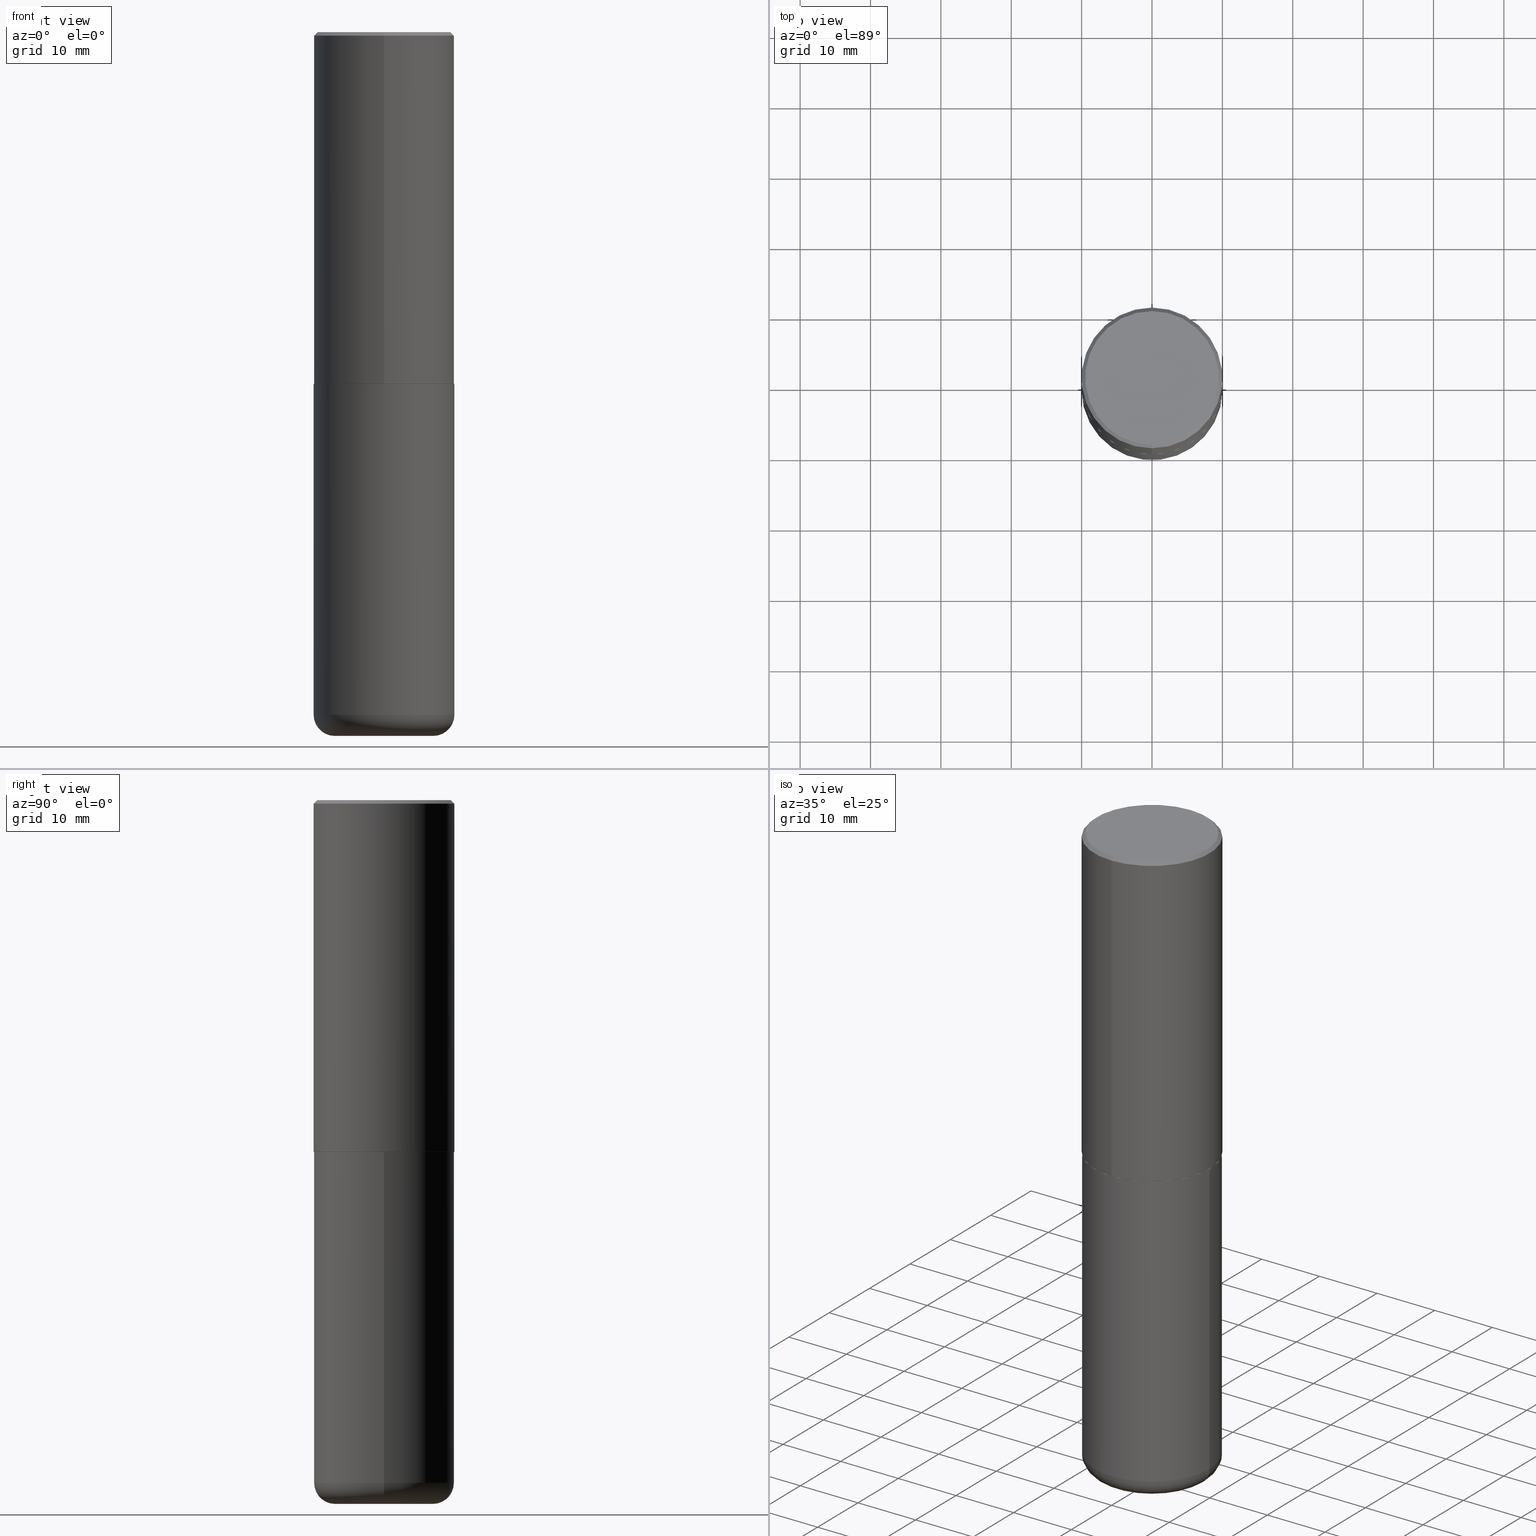
[diagram: canonical four-view strip — front | top / right | iso, engineering-drawing reading convention]
A machine part, canonical four-view strip (front | top / right | iso — engineering-drawing reading convention). The complete STEP part file that produces these views, byte-faithful:
ISO-10303-21;
HEADER;
FILE_DESCRIPTION (( 'STEP AP203' ),
    '1' );
FILE_NAME ('74810.STEP',
    '2024-05-02T19:20:18',
    ( '' ),
    ( '' ),
    'SwSTEP 2.0',
    'SolidWorks 2023',
    '' );
FILE_SCHEMA (( 'CONFIG_CONTROL_DESIGN' ));
ENDSEC;

DATA;
#1 = ORIENTED_EDGE ( 'NONE', *, *, #275, .F. ) ;
#2 = EDGE_CURVE ( 'NONE', #93, #264, #250, .T. ) ;
#3 = AXIS2_PLACEMENT_3D ( 'NONE', #375, #176, #403 ) ;
#4 = VERTEX_POINT ( 'NONE', #173 ) ;
#5 = CC_DESIGN_DATE_AND_TIME_ASSIGNMENT ( #221, #317, ( #382 ) ) ;
#6 = AXIS2_PLACEMENT_3D ( 'NONE', #381, #329, #359 ) ;
#7 = CARTESIAN_POINT ( 'NONE',  ( 9.627810689950883669E-29, -1.374596203102546341E-14, -3.937000000000000277 ) ) ;
#8 = ADVANCED_FACE ( 'NONE', ( #106 ), #148, .T. ) ;
#9 = AXIS2_PLACEMENT_3D ( 'NONE', #376, #347, #253 ) ;
#10 = EDGE_CURVE ( 'NONE', #363, #338, #154, .T. ) ;
#11 = DIRECTION ( 'NONE',  ( 1.000000000000000000, -6.982962677686265922E-15, 0.000000000000000000 ) ) ;
#12 = APPROVAL_STATUS ( 'not_yet_approved' ) ;
#13 = PERSON_AND_ORGANIZATION ( #124, #366 ) ;
#14 = APPROVAL_PERSON_ORGANIZATION ( #183, #213, #402 ) ;
#15 = AXIS2_PLACEMENT_3D ( 'NONE', #7, #282, #11 ) ;
#16 = EDGE_CURVE ( 'NONE', #94, #327, #81, .T. ) ;
#17 = CARTESIAN_POINT ( 'NONE',  ( 4.818695749097161561E-29, -6.866120884157558352E-15, -1.968500000000000139 ) ) ;
#18 = APPROVAL_PERSON_ORGANIZATION ( #43, #259, #167 ) ;
#19 = CARTESIAN_POINT ( 'NONE',  ( 2.609533152651356620E-15, 0.3736999999999999211, -1.190999831739488445E-15 ) ) ;
#20 = AXIS2_PLACEMENT_3D ( 'NONE', #407, #57, #235 ) ;
#21 = AXIS2_PLACEMENT_3D ( 'NONE', #326, #302, #362 ) ;
#22 = ORIENTED_EDGE ( 'NONE', *, *, #77, .F. ) ;
#23 = DIRECTION ( 'NONE',  ( -6.982962677686265922E-15, -1.000000000000000000, 3.469453890861393601E-15 ) ) ;
#24 = ORIENTED_EDGE ( 'NONE', *, *, #263, .T. ) ;
#25 = CARTESIAN_POINT ( 'NONE',  ( 4.895804672692082949E-31, -6.975992770289649092E-17, -0.02000000000000008715 ) ) ;
#26 = FACE_OUTER_BOUND ( 'NONE', #165, .T. ) ;
#27 = AXIS2_PLACEMENT_3D ( 'NONE', #350, #82, #268 ) ;
#28 = LINE ( 'NONE', #160, #59 ) ;
#29 = ORIENTED_EDGE ( 'NONE', *, *, #275, .T. ) ;
#30 = CARTESIAN_POINT ( 'NONE',  ( 9.339000823940418668E-29, -1.333361808490808928E-14, -3.818900000000000183 ) ) ;
#31 = CARTESIAN_POINT ( 'NONE',  ( -0.3937000000000001054, -1.053621133422057529E-14, -3.818900000000000183 ) ) ;
#32 = ORIENTED_EDGE ( 'NONE', *, *, #10, .T. ) ;
#33 = ADVANCED_FACE ( 'NONE', ( #51 ), #158, .F. ) ;
#34 = ADVANCED_FACE ( 'NONE', ( #378 ), #169, .T. ) ;
#35 = VERTEX_POINT ( 'NONE', #54 ) ;
#36 = AXIS2_PLACEMENT_3D ( 'NONE', #228, #220, #23 ) ;
#37 = PRODUCT ( '74810', '74810', '', ( #260 ) ) ;
#38 = DIRECTION ( 'NONE',  ( -2.447902336346030930E-29, 3.487996385144809755E-15, 1.000000000000000000 ) ) ;
#39 = DIRECTION ( 'NONE',  ( 2.447902336346030930E-29, -3.487996385144809755E-15, -1.000000000000000000 ) ) ;
#40 = CARTESIAN_POINT ( 'NONE',  ( -2.749192406205084400E-15, -0.3937000000000002164, 1.373224176831512262E-15 ) ) ;
#41 = DIRECTION ( 'NONE',  ( -6.982962677686265922E-15, -1.000000000000000000, 3.487996385144809360E-15 ) ) ;
#42 = CC_DESIGN_PERSON_AND_ORGANIZATION_ASSIGNMENT ( #63, #245, ( #80 ) ) ;
#43 = PERSON_AND_ORGANIZATION ( #124, #366 ) ;
#44 = DIRECTION ( 'NONE',  ( -2.447902336346030930E-29, 3.487996385144809360E-15, 1.000000000000000000 ) ) ;
#45 = CALENDAR_DATE ( 2024, 2, 5 ) ;
#46 = CARTESIAN_POINT ( 'NONE',  ( -2.749192406205036674E-15, -0.3937000000000070998, -1.967499999999998694 ) ) ;
#47 = CARTESIAN_POINT ( 'NONE',  ( 4.813905344975441835E-29, -6.872981015512731707E-15, -1.968500000000000139 ) ) ;
#48 = DIRECTION ( 'NONE',  ( 1.000000000000000000, -6.982962677686266711E-15, 4.876176775795935793E-29 ) ) ;
#49 = COORDINATED_UNIVERSAL_TIME_OFFSET ( 5, 0, .BEHIND. ) ;
#50 = CARTESIAN_POINT ( 'NONE',  ( 0.000000000000000000, 0.000000000000000000, 0.000000000000000000 ) ) ;
#51 = FACE_OUTER_BOUND ( 'NONE', #303, .T. ) ;
#52 = EDGE_CURVE ( 'NONE', #4, #171, #258, .T. ) ;
#53 = ORIENTED_EDGE ( 'NONE', *, *, #343, .T. ) ;
#54 = CARTESIAN_POINT ( 'NONE',  ( -2.742209443527348687E-15, -0.3927000000000069324, -1.968499999999998584 ) ) ;
#55 = ADVANCED_FACE ( 'NONE', ( #162 ), #134, .T. ) ;
#56 = ORIENTED_EDGE ( 'NONE', *, *, #358, .T. ) ;
#57 = DIRECTION ( 'NONE',  ( -2.447902336346030930E-29, 3.487996385144809755E-15, 1.000000000000000000 ) ) ;
#58 = DIRECTION ( 'NONE',  ( -2.445468806185136597E-29, 3.491481338843145583E-15, 1.000000000000000000 ) ) ;
#59 = VECTOR ( 'NONE', #416, 39.37007874015748143 ) ;
#60 = VERTEX_POINT ( 'NONE', #380 ) ;
#61 = LINE ( 'NONE', #355, #95 ) ;
#62 = CARTESIAN_POINT ( 'NONE',  ( 0.3937000000000001054, -2.749192406205084005E-15, 1.919750796630860452E-29 ) ) ;
#63 = PERSON_AND_ORGANIZATION ( #124, #366 ) ;
#64 = ORIENTED_EDGE ( 'NONE', *, *, #263, .F. ) ;
#65 = AXIS2_PLACEMENT_3D ( 'NONE', #66, #199, #92 ) ;
#66 = CARTESIAN_POINT ( 'NONE',  ( 4.813905344975441835E-29, -6.872981015512731707E-15, -1.968500000000000139 ) ) ;
#67 = UNCERTAINTY_MEASURE_WITH_UNIT (LENGTH_MEASURE( 1.000000000000000082E-05 ), #227, 'distance_accuracy_value', 'NONE');
#68 = EDGE_LOOP ( 'NONE', ( #123, #53, #284, #127 ) ) ;
#69 = ORIENTED_EDGE ( 'NONE', *, *, #71, .F. ) ;
#70 = AXIS2_PLACEMENT_3D ( 'NONE', #191, #328, #294 ) ;
#71 = EDGE_CURVE ( 'NONE', #351, #330, #103, .T. ) ;
#72 = DIRECTION ( 'NONE',  ( -6.982962677686265922E-15, -1.000000000000000000, 3.487996385144809360E-15 ) ) ;
#73 = CARTESIAN_POINT ( 'NONE',  ( 4.818695749097161561E-29, -6.866120884157558352E-15, -1.968500000000000139 ) ) ;
#74 = DIRECTION ( 'NONE',  ( 4.937700262164533054E-15, 0.7071067811865430208, -0.7071067811865520136 ) ) ;
#75 = DATE_TIME_ROLE ( 'creation_date' ) ;
#76 = CONICAL_SURFACE ( 'NONE', #353, 0.3926999999999999935, 0.7853981633975507526 ) ;
#77 = EDGE_CURVE ( 'NONE', #417, #4, #356, .T. ) ;
#78 = PERSON_AND_ORGANIZATION_ROLE ( 'design_supplier' ) ;
#79 = DIRECTION ( 'NONE',  ( -2.445468806185136597E-29, 3.491481338843145583E-15, 1.000000000000000000 ) ) ;
#80 = PRODUCT_DEFINITION ( 'UNKNOWN', '', #249, #147 ) ;
#81 = CIRCLE ( 'NONE', #36, 0.3937000000000002720 ) ;
#82 = DIRECTION ( 'NONE',  ( -2.445468806185136597E-29, 3.491481338843145583E-15, 1.000000000000000000 ) ) ;
#83 = EDGE_CURVE ( 'NONE', #417, #111, #331, .T. ) ;
#84 = CARTESIAN_POINT ( 'NONE',  ( 4.818695749097161561E-29, -6.866120884157558352E-15, -1.968500000000000139 ) ) ;
#85 = ADVANCED_FACE ( 'NONE', ( #118 ), #76, .T. ) ;
#86 = LENGTH_MEASURE_WITH_UNIT ( LENGTH_MEASURE( 0.02539999999999999897 ), #175 );
#87 = DIRECTION ( 'NONE',  ( -2.447902336346030930E-29, 3.487996385144809755E-15, 1.000000000000000000 ) ) ;
#88 = DIRECTION ( 'NONE',  ( -2.447902336346030930E-29, 3.487996385144809755E-15, 1.000000000000000000 ) ) ;
#89 = CARTESIAN_POINT ( 'NONE',  ( 9.339000823940418668E-29, -1.333361808490808928E-14, -3.818900000000000183 ) ) ;
#90 = DIRECTION ( 'NONE',  ( 7.105427357601001859E-15, 1.000000000000000000, -3.491481338843145583E-15 ) ) ;
#91 = ORIENTED_EDGE ( 'NONE', *, *, #10, .F. ) ;
#92 = DIRECTION ( 'NONE',  ( 1.000000000000000000, -6.982962677686265133E-15, 0.000000000000000000 ) ) ;
#93 = VERTEX_POINT ( 'NONE', #212 ) ;
#94 = VERTEX_POINT ( 'NONE', #344 ) ;
#95 = VECTOR ( 'NONE', #74, 39.37007874015748143 ) ;
#96 = FACE_OUTER_BOUND ( 'NONE', #312, .T. ) ;
#97 = ORIENTED_EDGE ( 'NONE', *, *, #52, .T. ) ;
#98 = VECTOR ( 'NONE', #339, 39.37007874015748143 ) ;
#99 = DIRECTION ( 'NONE',  ( -2.447902336346030930E-29, 3.487996385144809755E-15, 1.000000000000000000 ) ) ;
#100 = CALENDAR_DATE ( 2024, 2, 5 ) ;
#101 = EDGE_CURVE ( 'NONE', #363, #111, #398, .T. ) ;
#102 = LOCAL_TIME ( 15, 20, 18.00000000000000000, #49 ) ;
#103 = CIRCLE ( 'NONE', #309, 0.3937000000000001054 ) ;
#104 = DIRECTION ( 'NONE',  ( -1.000000000000000000, 6.982962677686265922E-15, -4.876176775795935793E-29 ) ) ;
#105 = CARTESIAN_POINT ( 'NONE',  ( 2.797406750687515575E-15, 0.3937000000000002164, -1.373224176831512262E-15 ) ) ;
#106 = FACE_OUTER_BOUND ( 'NONE', #114, .T. ) ;
#107 = CALENDAR_DATE ( 2024, 2, 5 ) ;
#108 = ADVANCED_FACE ( 'NONE', ( #26 ), #239, .T. ) ;
#109 = DIRECTION ( 'NONE',  ( 0.000000000000000000, 0.000000000000000000, 1.000000000000000000 ) ) ;
#110 = CIRCLE ( 'NONE', #325, 0.3937000000000001054 ) ;
#111 = VERTEX_POINT ( 'NONE', #31 ) ;
#112 = CARTESIAN_POINT ( 'NONE',  ( 0.3937000000000001054, -1.608281049111317408E-14, -3.818900000000000183 ) ) ;
#113 = DIRECTION ( 'NONE',  ( 6.982962677686265133E-15, 1.000000000000000000, -3.491137977679279029E-15 ) ) ;
#114 = EDGE_LOOP ( 'NONE', ( #333, #270, #274, #22 ) ) ;
#115 = CARTESIAN_POINT ( 'NONE',  ( 4.895804672692082949E-31, -6.975992770289649092E-17, -0.02000000000000008715 ) ) ;
#116 = EDGE_CURVE ( 'NONE', #171, #4, #367, .T. ) ;
#117 = CC_DESIGN_SECURITY_CLASSIFICATION ( #382, ( #249 ) ) ;
#118 = FACE_OUTER_BOUND ( 'NONE', #324, .T. ) ;
#119 = AXIS2_PLACEMENT_3D ( 'NONE', #299, #305, #192 ) ;
#120 = CARTESIAN_POINT ( 'NONE',  ( -2.700978061722651647E-15, -0.3937000000000001609, -0.01999999999999870978 ) ) ;
#121 = DIRECTION ( 'NONE',  ( -2.445468806185136597E-29, 3.491481338843145583E-15, 1.000000000000000000 ) ) ;
#122 = EDGE_LOOP ( 'NONE', ( #311, #390, #418, #271 ) ) ;
#123 = ORIENTED_EDGE ( 'NONE', *, *, #296, .T. ) ;
#124 = PERSON ( 'UNSPECIFIED', 'UNSPECIFIED', 'UNSPECIFIED', ('UNSPECIFIED'), ('UNSPECIFIED'), ('UNSPECIFIED') ) ;
#125 = EDGE_CURVE ( 'NONE', #264, #93, #230, .T. ) ;
#126 = CC_DESIGN_APPROVAL ( #259, ( #80 ) ) ;
#127 = ORIENTED_EDGE ( 'NONE', *, *, #209, .F. ) ;
#128 = VECTOR ( 'NONE', #200, 39.37007874015748143 ) ;
#129 = COORDINATED_UNIVERSAL_TIME_OFFSET ( 5, 0, .BEHIND. ) ;
#130 = CIRCLE ( 'NONE', #9, 0.3926999999999999935 ) ;
#131 = EDGE_LOOP ( 'NONE', ( #336, #91 ) ) ;
#132 = PLANE ( 'NONE',  #210 ) ;
#133 = EDGE_LOOP ( 'NONE', ( #335, #388, #170, #405 ) ) ;
#134 = CONICAL_SURFACE ( 'NONE', #320, 0.3937000000000001054, 0.7853981633974453924 ) ;
#135 = APPROVAL_DATE_TIME ( #256, #213 ) ;
#136 = CC_DESIGN_PERSON_AND_ORGANIZATION_ASSIGNMENT ( #13, #140, ( #382 ) ) ;
#137 = CARTESIAN_POINT ( 'NONE',  ( 0.2756000000000000116, -1.525812259887842581E-14, -3.818900000000000183 ) ) ;
#138 = DIRECTION ( 'NONE',  ( 1.000000000000000000, -6.982962677686269077E-15, 0.000000000000000000 ) ) ;
#139 = DIRECTION ( 'NONE',  ( -6.982962677686265133E-15, -1.000000000000000000, 3.478288761986584267E-15 ) ) ;
#140 = PERSON_AND_ORGANIZATION_ROLE ( 'classification_officer' ) ;
#141 = PERSON_AND_ORGANIZATION_ROLE ( 'design_owner' ) ;
#142 = CARTESIAN_POINT ( 'NONE',  ( 9.627810689950883669E-29, -1.374596203102546341E-14, -3.937000000000000277 ) ) ;
#143 = LINE ( 'NONE', #40, #180 ) ;
#144 = TOROIDAL_SURFACE ( 'NONE', #202, 0.2756000000000000116, 0.1181000000000000522 ) ;
#145 = APPROVAL_PERSON_ORGANIZATION ( #214, #371, #149 ) ;
#146 = PERSON_AND_ORGANIZATION ( #124, #366 ) ;
#147 = DESIGN_CONTEXT ( 'detailed design', #248, 'design' ) ;
#148 = CYLINDRICAL_SURFACE ( 'NONE', #314, 0.3937000000000001054 ) ;
#149 = APPROVAL_ROLE ( '' ) ;
#150 = DIRECTION ( 'NONE',  ( 6.982962677686265133E-15, 1.000000000000000000, -3.491137977679279029E-15 ) ) ;
#151 = AXIS2_PLACEMENT_3D ( 'NONE', #321, #39, #150 ) ;
#152 = PERSON_AND_ORGANIZATION ( #124, #366 ) ;
#153 = LOCAL_TIME ( 15, 20, 18.00000000000000000, #272 ) ;
#154 = CIRCLE ( 'NONE', #27, 0.2756000000000000116 ) ;
#155 = ORIENTED_EDGE ( 'NONE', *, *, #77, .T. ) ;
#156 =( NAMED_UNIT ( * ) SI_UNIT ( $, .STERADIAN. ) SOLID_ANGLE_UNIT ( ) );
#157 = CC_DESIGN_DATE_AND_TIME_ASSIGNMENT ( #319, #75, ( #80 ) ) ;
#158 = PLANE ( 'NONE',  #204 ) ;
#159 = MANIFOLD_SOLID_BREP ( 'Body-Move/Copy2[1]', #238 ) ;
#160 = CARTESIAN_POINT ( 'NONE',  ( -2.742209443527348687E-15, -0.3927000000000069324, -1.968499999999998584 ) ) ;
#161 = DATE_AND_TIME ( #262, #153 ) ;
#162 = FACE_OUTER_BOUND ( 'NONE', #279, .T. ) ;
#163 = MANIFOLD_SOLID_BREP ( 'Body-Move/Copy2[2]', #217 ) ;
#164 = DIRECTION ( 'NONE',  ( -6.982962677686265133E-15, -1.000000000000000000, 3.491137977679279029E-15 ) ) ;
#165 = EDGE_LOOP ( 'NONE', ( #306, #357, #155, #205 ) ) ;
#166 = DIRECTION ( 'NONE',  ( -2.447902336346030930E-29, 3.487996385144809755E-15, 1.000000000000000000 ) ) ;
#167 = APPROVAL_ROLE ( '' ) ;
#168 = EDGE_LOOP ( 'NONE', ( #64, #197, #277, #241 ) ) ;
#169 = CONICAL_SURFACE ( 'NONE', #361, 0.3926999999999999935, 0.7853981633975507526 ) ;
#170 = ORIENTED_EDGE ( 'NONE', *, *, #83, .F. ) ;
#171 = VERTEX_POINT ( 'NONE', #332 ) ;
#172 = CARTESIAN_POINT ( 'NONE',  ( -2.700978061722651647E-15, -0.3937000000000001609, -0.01999999999999870978 ) ) ;
#173 = CARTESIAN_POINT ( 'NONE',  ( 0.3937000000000000499, -9.622173421717814924E-15, -1.968500000000000139 ) ) ;
#174 =( NAMED_UNIT ( * ) PLANE_ANGLE_UNIT ( ) SI_UNIT ( $, .RADIAN. ) );
#175 =( LENGTH_UNIT ( ) NAMED_UNIT ( * ) SI_UNIT ( $, .METRE. ) );
#176 = DIRECTION ( 'NONE',  ( -2.447902336346030930E-29, 3.487996385144809755E-15, 1.000000000000000000 ) ) ;
#177 = LOCAL_TIME ( 15, 20, 18.00000000000000000, #179 ) ;
#178 = VECTOR ( 'NONE', #189, 39.37007874015748143 ) ;
#179 = COORDINATED_UNIVERSAL_TIME_OFFSET ( 5, 0, .BEHIND. ) ;
#180 = VECTOR ( 'NONE', #283, 39.37007874015748143 ) ;
#181 = DIRECTION ( 'NONE',  ( 1.000000000000000000, 0.000000000000000000, 0.000000000000000000 ) ) ;
#182 = FACE_OUTER_BOUND ( 'NONE', #168, .T. ) ;
#183 = PERSON_AND_ORGANIZATION ( #124, #366 ) ;
#184 = DIRECTION ( 'NONE',  ( 2.447902336346030930E-29, -3.487996385144809360E-15, -1.000000000000000000 ) ) ;
#185 = ORIENTED_EDGE ( 'NONE', *, *, #308, .T. ) ;
#186 = DIRECTION ( 'NONE',  ( 1.000000000000000000, -6.982962677686266711E-15, 0.000000000000000000 ) ) ;
#187 = CARTESIAN_POINT ( 'NONE',  ( -0.2756000000000000116, -1.116195879274560421E-14, -3.937000000000000277 ) ) ;
#188 = AXIS2_PLACEMENT_3D ( 'NONE', #50, #109, #181 ) ;
#189 = DIRECTION ( 'NONE',  ( -2.445468806185136877E-29, 3.491481338843145188E-15, 1.000000000000000000 ) ) ;
#190 = ORIENTED_EDGE ( 'NONE', *, *, #116, .T. ) ;
#191 = CARTESIAN_POINT ( 'NONE',  ( 9.339000823940418668E-29, -1.333361808490808928E-14, -3.818900000000000183 ) ) ;
#192 = DIRECTION ( 'NONE',  ( -6.982962677686265133E-15, -1.000000000000000000, 3.487996385144809755E-15 ) ) ;
#193 = CONICAL_SURFACE ( 'NONE', #151, 0.3937000000000001054, 0.7853981633974453924 ) ;
#194 = ORIENTED_EDGE ( 'NONE', *, *, #209, .T. ) ;
#195 = ADVANCED_BREP_SHAPE_REPRESENTATION ( '74810', ( #159, #163, #188 ), #391 ) ;
#196 = AXIS2_PLACEMENT_3D ( 'NONE', #47, #58, #323 ) ;
#197 = ORIENTED_EDGE ( 'NONE', *, *, #2, .F. ) ;
#198 = CARTESIAN_POINT ( 'NONE',  ( -2.632373081744936315E-15, -0.3736999999999999211, 1.528393083906868747E-15 ) ) ;
#199 = DIRECTION ( 'NONE',  ( -2.445468806185136597E-29, 3.491481338843145583E-15, 1.000000000000000000 ) ) ;
#200 = DIRECTION ( 'NONE',  ( -4.851104656540950075E-15, -0.7071067811865479058, -0.7071067811865471286 ) ) ;
#201 = ORIENTED_EDGE ( 'NONE', *, *, #101, .F. ) ;
#202 = AXIS2_PLACEMENT_3D ( 'NONE', #377, #342, #287 ) ;
#203 = LOCAL_TIME ( 15, 20, 18.00000000000000000, #215 ) ;
#204 = AXIS2_PLACEMENT_3D ( 'NONE', #19, #184, #261 ) ;
#205 = ORIENTED_EDGE ( 'NONE', *, *, #116, .F. ) ;
#206 = ORIENTED_EDGE ( 'NONE', *, *, #296, .F. ) ;
#207 = EDGE_CURVE ( 'NONE', #111, #171, #334, .T. ) ;
#208 = CARTESIAN_POINT ( 'NONE',  ( 2.749192406205084005E-15, 0.3937000000000000499, -0.02000000000000146105 ) ) ;
#209 = EDGE_CURVE ( 'NONE', #35, #327, #28, .T. ) ;
#210 = AXIS2_PLACEMENT_3D ( 'NONE', #142, #288, #104 ) ;
#211 = CARTESIAN_POINT ( 'NONE',  ( 0.000000000000000000, 0.000000000000000000, 0.000000000000000000 ) ) ;
#212 = CARTESIAN_POINT ( 'NONE',  ( 2.679362779428220707E-15, 0.3736999999999999211, -1.078535414350361218E-15 ) ) ;
#213 = APPROVAL ( #12, 'UNSPECIFIED' ) ;
#214 = PERSON_AND_ORGANIZATION ( #124, #366 ) ;
#215 = COORDINATED_UNIVERSAL_TIME_OFFSET ( 5, 0, .BEHIND. ) ;
#216 = CC_DESIGN_APPROVAL ( #371, ( #249 ) ) ;
#217 = CLOSED_SHELL ( 'NONE', ( #34, #346, #55, #337, #401, #85, #304, #33 ) ) ;
#218 = SHAPE_DEFINITION_REPRESENTATION ( #281, #195 ) ;
#219 = AXIS2_PLACEMENT_3D ( 'NONE', #30, #307, #186 ) ;
#220 = DIRECTION ( 'NONE',  ( -2.447902336346030930E-29, 3.487996385144809755E-15, 1.000000000000000000 ) ) ;
#221 = DATE_AND_TIME ( #45, #203 ) ;
#222 = FACE_OUTER_BOUND ( 'NONE', #122, .T. ) ;
#223 = DIRECTION ( 'NONE',  ( -6.982962677686265133E-15, -1.000000000000000000, 3.478288761986584267E-15 ) ) ;
#224 = APPLICATION_CONTEXT ( 'configuration controlled 3d designs of mechanical parts and assemblies' ) ;
#225 = CC_DESIGN_PERSON_AND_ORGANIZATION_ASSIGNMENT ( #152, #141, ( #37 ) ) ;
#226 = ORIENTED_EDGE ( 'NONE', *, *, #16, .F. ) ;
#227 =( CONVERSION_BASED_UNIT ( 'INCH', #86 ) LENGTH_UNIT ( ) NAMED_UNIT ( #412 ) );
#228 = CARTESIAN_POINT ( 'NONE',  ( 4.816247846760815671E-29, -6.862632887772413316E-15, -1.967500000000000027 ) ) ;
#229 = ADVANCED_FACE ( 'NONE', ( #411 ), #243, .T. ) ;
#230 = CIRCLE ( 'NONE', #119, 0.3736999999999999211 ) ;
#231 = DIRECTION ( 'NONE',  ( -6.982962677686265133E-15, -1.000000000000000000, 3.491137977679279029E-15 ) ) ;
#232 = DIRECTION ( 'NONE',  ( 1.000000000000000000, -6.982962677686266711E-15, 4.883557194083112340E-29 ) ) ;
#233 = ADVANCED_FACE ( 'NONE', ( #385 ), #237, .F. ) ;
#234 = APPROVAL_DATE_TIME ( #161, #259 ) ;
#235 = DIRECTION ( 'NONE',  ( -6.982962677686265133E-15, -1.000000000000000000, 3.478288761986584267E-15 ) ) ;
#236 = EDGE_CURVE ( 'NONE', #330, #351, #110, .T. ) ;
#237 = PLANE ( 'NONE',  #6 ) ;
#238 = CLOSED_SHELL ( 'NONE', ( #8, #387, #233, #108, #229, #291 ) ) ;
#239 = CYLINDRICAL_SURFACE ( 'NONE', #21, 0.3937000000000001054 ) ;
#240 = ORIENTED_EDGE ( 'NONE', *, *, #406, .F. ) ;
#241 = ORIENTED_EDGE ( 'NONE', *, *, #236, .T. ) ;
#242 = AXIS2_PLACEMENT_3D ( 'NONE', #246, #315, #72 ) ;
#243 = TOROIDAL_SURFACE ( 'NONE', #298, 0.2756000000000000116, 0.1181000000000000522 ) ;
#244 = ORIENTED_EDGE ( 'NONE', *, *, #2, .T. ) ;
#245 = PERSON_AND_ORGANIZATION_ROLE ( 'creator' ) ;
#246 = CARTESIAN_POINT ( 'NONE',  ( 0.000000000000000000, 0.000000000000000000, 0.000000000000000000 ) ) ;
#247 = DIRECTION ( 'NONE',  ( -6.982962677686265922E-15, -1.000000000000000000, 3.487996385144809360E-15 ) ) ;
#248 = APPLICATION_CONTEXT ( 'configuration controlled 3d designs of mechanical parts and assemblies' ) ;
#249 = PRODUCT_DEFINITION_FORMATION_WITH_SPECIFIED_SOURCE ( 'ANY', '', #37, .NOT_KNOWN. ) ;
#250 = CIRCLE ( 'NONE', #278, 0.3736999999999999211 ) ;
#251 = CIRCLE ( 'NONE', #368, 0.1181000000000000660 ) ;
#252 = APPROVAL_STATUS ( 'not_yet_approved' ) ;
#253 = DIRECTION ( 'NONE',  ( -6.982962677686265133E-15, -1.000000000000000000, 3.478288761986584267E-15 ) ) ;
#254 = LINE ( 'NONE', #105, #414 ) ;
#255 = AXIS2_PLACEMENT_3D ( 'NONE', #73, #44, #247 ) ;
#256 = DATE_AND_TIME ( #100, #177 ) ;
#257 = APPROVAL_DATE_TIME ( #345, #371 ) ;
#258 = CIRCLE ( 'NONE', #196, 0.3937000000000000499 ) ;
#259 = APPROVAL ( #410, 'UNSPECIFIED' ) ;
#260 = MECHANICAL_CONTEXT ( 'NONE', #224, 'mechanical' ) ;
#261 = DIRECTION ( 'NONE',  ( 6.982962677686265922E-15, 1.000000000000000000, -3.487996385144809360E-15 ) ) ;
#262 = CALENDAR_DATE ( 2024, 2, 5 ) ;
#263 = EDGE_CURVE ( 'NONE', #264, #351, #295, .T. ) ;
#264 = VERTEX_POINT ( 'NONE', #198 ) ;
#265 = EDGE_CURVE ( 'NONE', #111, #417, #373, .T. ) ;
#266 = CC_DESIGN_APPROVAL ( #213, ( #382 ) ) ;
#267 = VECTOR ( 'NONE', #413, 39.37007874015748143 ) ;
#268 = DIRECTION ( 'NONE',  ( 1.000000000000000000, -6.982962677686265922E-15, 0.000000000000000000 ) ) ;
#269 = DIRECTION ( 'NONE',  ( -1.000000000000000000, 7.105427357601000281E-15, 0.000000000000000000 ) ) ;
#270 = ORIENTED_EDGE ( 'NONE', *, *, #207, .T. ) ;
#271 = ORIENTED_EDGE ( 'NONE', *, *, #236, .F. ) ;
#272 = COORDINATED_UNIVERSAL_TIME_OFFSET ( 5, 0, .BEHIND. ) ;
#273 = ORIENTED_EDGE ( 'NONE', *, *, #265, .F. ) ;
#274 = ORIENTED_EDGE ( 'NONE', *, *, #52, .F. ) ;
#275 = EDGE_CURVE ( 'NONE', #60, #35, #300, .T. ) ;
#276 = FACE_OUTER_BOUND ( 'NONE', #131, .T. ) ;
#277 = ORIENTED_EDGE ( 'NONE', *, *, #406, .T. ) ;
#278 = AXIS2_PLACEMENT_3D ( 'NONE', #399, #99, #318 ) ;
#279 = EDGE_LOOP ( 'NONE', ( #369, #24, #310, #240 ) ) ;
#280 = APPLICATION_PROTOCOL_DEFINITION ( 'international standard', 'config_control_design', 1994, #224 ) ;
#281 = PRODUCT_DEFINITION_SHAPE ( 'NONE', 'NONE',  #80 ) ;
#282 = DIRECTION ( 'NONE',  ( -2.445468806185136597E-29, 3.491481338843145583E-15, 1.000000000000000000 ) ) ;
#283 = DIRECTION ( 'NONE',  ( -2.447902336346030930E-29, 3.487996385144809360E-15, 1.000000000000000000 ) ) ;
#284 = ORIENTED_EDGE ( 'NONE', *, *, #308, .F. ) ;
#285 = CALENDAR_DATE ( 2024, 2, 5 ) ;
#286 = CYLINDRICAL_SURFACE ( 'NONE', #242, 0.3937000000000002164 ) ;
#287 = DIRECTION ( 'NONE',  ( 1.000000000000000000, -6.982962677686266711E-15, 4.883557194083112340E-29 ) ) ;
#288 = DIRECTION ( 'NONE',  ( 2.438088387897960049E-29, -3.491481338843145188E-15, -1.000000000000000000 ) ) ;
#289 = SECURITY_CLASSIFICATION_LEVEL ( 'unclassified' ) ;
#290 = FACE_OUTER_BOUND ( 'NONE', #133, .T. ) ;
#291 = ADVANCED_FACE ( 'NONE', ( #276 ), #132, .T. ) ;
#292 = CIRCLE ( 'NONE', #3, 0.3937000000000002720 ) ;
#293 = DIRECTION ( 'NONE',  ( 2.447902336346030930E-29, -3.487996385144809755E-15, -1.000000000000000000 ) ) ;
#294 = DIRECTION ( 'NONE',  ( 1.000000000000000000, -6.982962677686266711E-15, 0.000000000000000000 ) ) ;
#295 = LINE ( 'NONE', #120, #128 ) ;
#296 = EDGE_CURVE ( 'NONE', #35, #60, #130, .T. ) ;
#297 = ORIENTED_EDGE ( 'NONE', *, *, #343, .F. ) ;
#298 = AXIS2_PLACEMENT_3D ( 'NONE', #89, #121, #232 ) ;
#299 = CARTESIAN_POINT ( 'NONE',  ( -5.506038201652776757E-45, 7.845509626213831500E-31, 2.249288347782537153E-16 ) ) ;
#300 = CIRCLE ( 'NONE', #20, 0.3926999999999999935 ) ;
#301 = ORIENTED_EDGE ( 'NONE', *, *, #125, .T. ) ;
#302 = DIRECTION ( 'NONE',  ( -2.445468806185136597E-29, 3.491481338843145583E-15, 1.000000000000000000 ) ) ;
#303 = EDGE_LOOP ( 'NONE', ( #244, #301 ) ) ;
#304 = ADVANCED_FACE ( 'NONE', ( #394 ), #370, .F. ) ;
#305 = DIRECTION ( 'NONE',  ( -2.447902336346030930E-29, 3.487996385144809755E-15, 1.000000000000000000 ) ) ;
#306 = ORIENTED_EDGE ( 'NONE', *, *, #207, .F. ) ;
#307 = DIRECTION ( 'NONE',  ( -2.445468806185136597E-29, 3.491481338843145583E-15, 1.000000000000000000 ) ) ;
#308 = EDGE_CURVE ( 'NONE', #327, #94, #292, .T. ) ;
#309 = AXIS2_PLACEMENT_3D ( 'NONE', #115, #88, #231 ) ;
#310 = ORIENTED_EDGE ( 'NONE', *, *, #71, .T. ) ;
#311 = ORIENTED_EDGE ( 'NONE', *, *, #400, .F. ) ;
#312 = EDGE_LOOP ( 'NONE', ( #185, #364, #69, #365 ) ) ;
#313 = CARTESIAN_POINT ( 'NONE',  ( 0.2756000000000000116, -1.567046654499579837E-14, -3.937000000000000277 ) ) ;
#314 = AXIS2_PLACEMENT_3D ( 'NONE', #404, #79, #48 ) ;
#315 = DIRECTION ( 'NONE',  ( -2.447902336346030930E-29, 3.487996385144809755E-15, 1.000000000000000000 ) ) ;
#316 = DIRECTION ( 'NONE',  ( -2.447902336346030930E-29, 3.487996385144809360E-15, 1.000000000000000000 ) ) ;
#317 = DATE_TIME_ROLE ( 'classification_date' ) ;
#318 = DIRECTION ( 'NONE',  ( -6.982962677686265133E-15, -1.000000000000000000, 3.487996385144809755E-15 ) ) ;
#319 = DATE_AND_TIME ( #107, #372 ) ;
#320 = AXIS2_PLACEMENT_3D ( 'NONE', #408, #293, #113 ) ;
#321 = CARTESIAN_POINT ( 'NONE',  ( 4.895804672692082949E-31, -6.975992770289649092E-17, -0.02000000000000008715 ) ) ;
#322 = CC_DESIGN_PERSON_AND_ORGANIZATION_ASSIGNMENT ( #146, #78, ( #249 ) ) ;
#323 = DIRECTION ( 'NONE',  ( 1.000000000000000000, -6.982962677686265133E-15, 0.000000000000000000 ) ) ;
#324 = EDGE_LOOP ( 'NONE', ( #297, #29, #194, #226 ) ) ;
#325 = AXIS2_PLACEMENT_3D ( 'NONE', #25, #166, #164 ) ;
#326 = CARTESIAN_POINT ( 'NONE',  ( 0.000000000000000000, 0.000000000000000000, 0.000000000000000000 ) ) ;
#327 = VERTEX_POINT ( 'NONE', #46 ) ;
#328 = DIRECTION ( 'NONE',  ( -2.445468806185136597E-29, 3.491481338843145583E-15, 1.000000000000000000 ) ) ;
#329 = DIRECTION ( 'NONE',  ( 2.438088387897960049E-29, -3.491481338843145188E-15, -1.000000000000000000 ) ) ;
#330 = VERTEX_POINT ( 'NONE', #208 ) ;
#331 = CIRCLE ( 'NONE', #70, 0.3937000000000001054 ) ;
#332 = CARTESIAN_POINT ( 'NONE',  ( -0.3937000000000000499, -7.305892799522895709E-15, -1.968500000000000139 ) ) ;
#333 = ORIENTED_EDGE ( 'NONE', *, *, #83, .T. ) ;
#334 = LINE ( 'NONE', #352, #178 ) ;
#335 = ORIENTED_EDGE ( 'NONE', *, *, #354, .T. ) ;
#336 = ORIENTED_EDGE ( 'NONE', *, *, #354, .F. ) ;
#337 = ADVANCED_FACE ( 'NONE', ( #182 ), #193, .T. ) ;
#338 = VERTEX_POINT ( 'NONE', #313 ) ;
#339 = DIRECTION ( 'NONE',  ( 5.024295867788576727E-15, 0.7071067811866224018, 0.7071067811864726327 ) ) ;
#340 = LINE ( 'NONE', #392, #98 ) ;
#341 = PRODUCT_RELATED_PRODUCT_CATEGORY ( 'detail', '', ( #37 ) ) ;
#342 = DIRECTION ( 'NONE',  ( -2.445468806185136597E-29, 3.491481338843145583E-15, 1.000000000000000000 ) ) ;
#343 = EDGE_CURVE ( 'NONE', #60, #94, #340, .T. ) ;
#344 = CARTESIAN_POINT ( 'NONE',  ( 2.797406750687540424E-15, 0.3936999999999934441, -1.967500000000001359 ) ) ;
#345 = DATE_AND_TIME ( #285, #102 ) ;
#346 = ADVANCED_FACE ( 'NONE', ( #96 ), #286, .T. ) ;
#347 = DIRECTION ( 'NONE',  ( -2.447902336346030930E-29, 3.487996385144809755E-15, 1.000000000000000000 ) ) ;
#348 = AXIS2_PLACEMENT_3D ( 'NONE', #211, #379, #41 ) ;
#349 = DIRECTION ( 'NONE',  ( -6.982962677686266711E-15, -1.000000000000000000, 3.491481338843145583E-15 ) ) ;
#350 = CARTESIAN_POINT ( 'NONE',  ( 9.627810689950883669E-29, -1.374596203102546341E-14, -3.937000000000000277 ) ) ;
#351 = VERTEX_POINT ( 'NONE', #172 ) ;
#352 = CARTESIAN_POINT ( 'NONE',  ( -0.3937000000000001054, 2.797406750687515181E-15, -1.936584745033357016E-29 ) ) ;
#353 = AXIS2_PLACEMENT_3D ( 'NONE', #17, #38, #139 ) ;
#354 = EDGE_CURVE ( 'NONE', #338, #363, #386, .T. ) ;
#355 = CARTESIAN_POINT ( 'NONE',  ( 2.749192406205084005E-15, 0.3937000000000000499, -0.02000000000000146105 ) ) ;
#356 = LINE ( 'NONE', #62, #267 ) ;
#357 = ORIENTED_EDGE ( 'NONE', *, *, #265, .T. ) ;
#358 = EDGE_CURVE ( 'NONE', #338, #417, #251, .T. ) ;
#359 = DIRECTION ( 'NONE',  ( -1.000000000000000000, 6.982962677686265922E-15, -4.876176775795935793E-29 ) ) ;
#360 = EDGE_LOOP ( 'NONE', ( #206, #1 ) ) ;
#361 = AXIS2_PLACEMENT_3D ( 'NONE', #84, #87, #223 ) ;
#362 = DIRECTION ( 'NONE',  ( 1.000000000000000000, -6.982962677686266711E-15, 4.876176775795935793E-29 ) ) ;
#363 = VERTEX_POINT ( 'NONE', #187 ) ;
#364 = ORIENTED_EDGE ( 'NONE', *, *, #400, .T. ) ;
#365 = ORIENTED_EDGE ( 'NONE', *, *, #384, .F. ) ;
#366 = ORGANIZATION ( 'UNSPECIFIED', 'UNSPECIFIED', '' ) ;
#367 = CIRCLE ( 'NONE', #65, 0.3937000000000000499 ) ;
#368 = AXIS2_PLACEMENT_3D ( 'NONE', #137, #349, #138 ) ;
#369 = ORIENTED_EDGE ( 'NONE', *, *, #125, .F. ) ;
#370 = PLANE ( 'NONE',  #255 ) ;
#371 = APPROVAL ( #252, 'UNSPECIFIED' ) ;
#372 = LOCAL_TIME ( 15, 20, 18.00000000000000000, #129 ) ;
#373 = CIRCLE ( 'NONE', #219, 0.3937000000000001054 ) ;
#374 = APPLICATION_PROTOCOL_DEFINITION ( 'international standard', 'config_control_design', 1994, #248 ) ;
#375 = CARTESIAN_POINT ( 'NONE',  ( 4.816247846760815671E-29, -6.862632887772413316E-15, -1.967500000000000027 ) ) ;
#376 = CARTESIAN_POINT ( 'NONE',  ( 4.818695749097161561E-29, -6.866120884157558352E-15, -1.968500000000000139 ) ) ;
#377 = CARTESIAN_POINT ( 'NONE',  ( 9.339000823940418668E-29, -1.333361808490808928E-14, -3.818900000000000183 ) ) ;
#378 = FACE_OUTER_BOUND ( 'NONE', #68, .T. ) ;
#379 = DIRECTION ( 'NONE',  ( -2.447902336346030930E-29, 3.487996385144809755E-15, 1.000000000000000000 ) ) ;
#380 = CARTESIAN_POINT ( 'NONE',  ( 2.793854037008762403E-15, 0.3926999999999931101, -1.968500000000001471 ) ) ;
#381 = CARTESIAN_POINT ( 'NONE',  ( 4.813905344975441835E-29, -6.872981015512731707E-15, -1.968500000000000139 ) ) ;
#382 = SECURITY_CLASSIFICATION ( '', '', #289 ) ;
#383 = CARTESIAN_POINT ( 'NONE',  ( -0.2756000000000000116, -1.137536230515325427E-14, -3.818900000000000183 ) ) ;
#384 = EDGE_CURVE ( 'NONE', #327, #351, #143, .T. ) ;
#385 = FACE_OUTER_BOUND ( 'NONE', #409, .T. ) ;
#386 = CIRCLE ( 'NONE', #15, 0.2756000000000000116 ) ;
#387 = ADVANCED_FACE ( 'NONE', ( #290 ), #144, .T. ) ;
#388 = ORIENTED_EDGE ( 'NONE', *, *, #101, .T. ) ;
#389 = AXIS2_PLACEMENT_3D ( 'NONE', #383, #90, #269 ) ;
#390 = ORIENTED_EDGE ( 'NONE', *, *, #16, .T. ) ;
#391 =( GEOMETRIC_REPRESENTATION_CONTEXT ( 3 ) GLOBAL_UNCERTAINTY_ASSIGNED_CONTEXT ( ( #67 ) ) GLOBAL_UNIT_ASSIGNED_CONTEXT ( ( #227, #174, #156 ) ) REPRESENTATION_CONTEXT ( 'NONE', 'WORKASPACE' ) );
#392 = CARTESIAN_POINT ( 'NONE',  ( 2.790301323329961110E-15, 0.3926999999999931101, -1.968500000000001471 ) ) ;
#393 = EDGE_LOOP ( 'NONE', ( #201, #32, #56, #273 ) ) ;
#394 = FACE_OUTER_BOUND ( 'NONE', #360, .T. ) ;
#395 = CYLINDRICAL_SURFACE ( 'NONE', #348, 0.3937000000000002164 ) ;
#396 = PERSON_AND_ORGANIZATION_ROLE ( 'creator' ) ;
#397 = PERSON_AND_ORGANIZATION ( #124, #366 ) ;
#398 = CIRCLE ( 'NONE', #389, 0.1181000000000000660 ) ;
#399 = CARTESIAN_POINT ( 'NONE',  ( -5.506038201652776757E-45, 7.845509626213831500E-31, 2.249288347782537153E-16 ) ) ;
#400 = EDGE_CURVE ( 'NONE', #94, #330, #254, .T. ) ;
#401 = ADVANCED_FACE ( 'NONE', ( #222 ), #395, .T. ) ;
#402 = APPROVAL_ROLE ( '' ) ;
#403 = DIRECTION ( 'NONE',  ( -6.982962677686265922E-15, -1.000000000000000000, 3.469453890861393601E-15 ) ) ;
#404 = CARTESIAN_POINT ( 'NONE',  ( 0.000000000000000000, 0.000000000000000000, 0.000000000000000000 ) ) ;
#405 = ORIENTED_EDGE ( 'NONE', *, *, #358, .F. ) ;
#406 = EDGE_CURVE ( 'NONE', #93, #330, #61, .T. ) ;
#407 = CARTESIAN_POINT ( 'NONE',  ( 4.818695749097161561E-29, -6.866120884157558352E-15, -1.968500000000000139 ) ) ;
#408 = CARTESIAN_POINT ( 'NONE',  ( 4.895804672692082949E-31, -6.975992770289649092E-17, -0.02000000000000008715 ) ) ;
#409 = EDGE_LOOP ( 'NONE', ( #97, #190 ) ) ;
#410 = APPROVAL_STATUS ( 'not_yet_approved' ) ;
#411 = FACE_OUTER_BOUND ( 'NONE', #393, .T. ) ;
#412 = DIMENSIONAL_EXPONENTS ( 1.000000000000000000, 0.000000000000000000, 0.000000000000000000, 0.000000000000000000, 0.000000000000000000, 0.000000000000000000, 0.000000000000000000 ) ;
#413 = DIRECTION ( 'NONE',  ( -2.445468806185136877E-29, 3.491481338843145188E-15, 1.000000000000000000 ) ) ;
#414 = VECTOR ( 'NONE', #316, 39.37007874015748143 ) ;
#415 = CC_DESIGN_PERSON_AND_ORGANIZATION_ASSIGNMENT ( #397, #396, ( #249 ) ) ;
#416 = DIRECTION ( 'NONE',  ( -4.937700262165053702E-15, -0.7071067811866175168, 0.7071067811864775177 ) ) ;
#417 = VERTEX_POINT ( 'NONE', #112 ) ;
#418 = ORIENTED_EDGE ( 'NONE', *, *, #384, .T. ) ;
ENDSEC;
END-ISO-10303-21;
